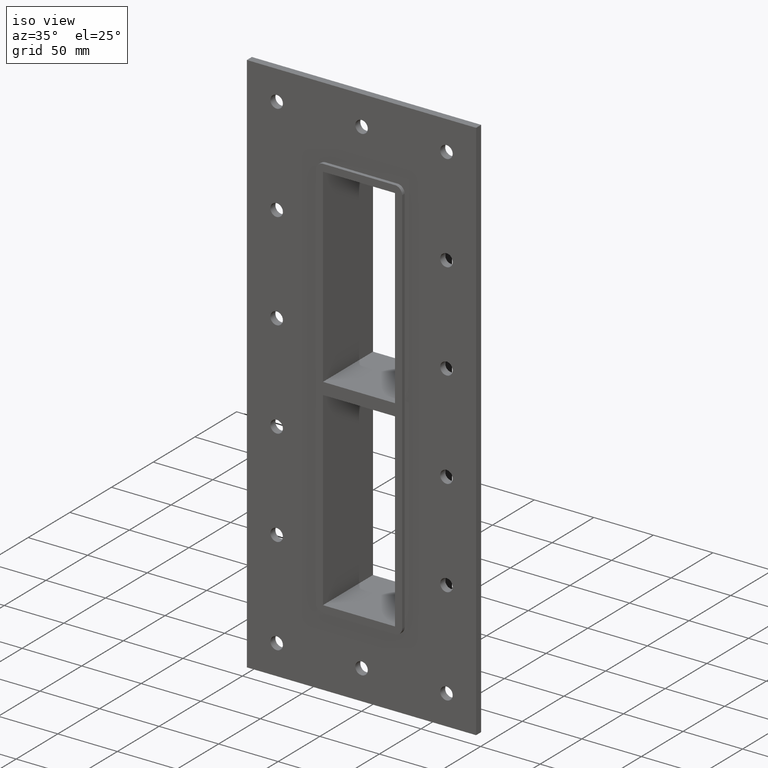
[diagram: clean part render]
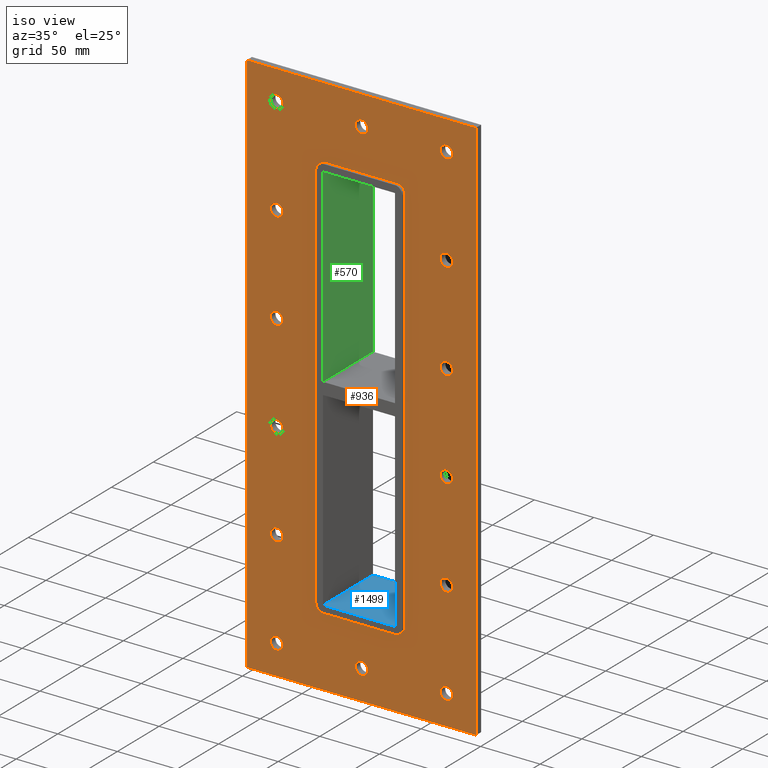
[diagram: same view with three faces highlighted in distinct colors, each labeled with its STEP entity id]
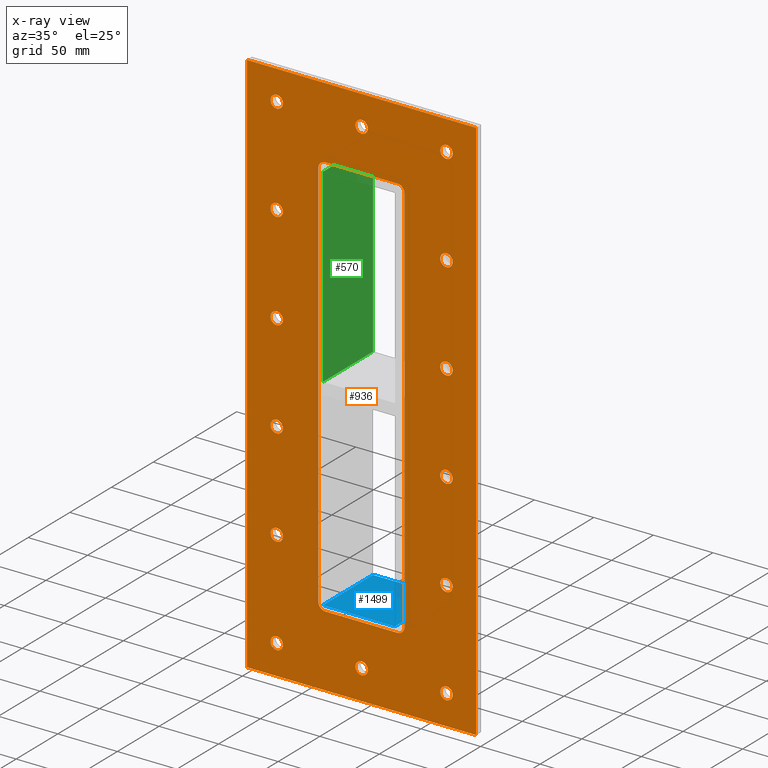
[diagram: x-ray of the same camera — body ghosted, the three highlighted faces saturated]
A machine part, iso view with three faces highlighted in distinct colors.
The next image is the same camera in x-ray (body ghosted, the three faces saturated) — at least one of them is partly hidden behind the body in this view.
Their STEP definitions:

[orange] entity #936 — the highlighted planar face has unit normal (0, 1, 0).
#84=CARTESIAN_POINT('',(-66.000000000000057,0.0,-205.50000000000006));
#85=VERTEX_POINT('',#84);
#86=CARTESIAN_POINT('',(-71.250000000000057,0.0,-205.50000000000006));
#87=DIRECTION('',(0.0,1.0,0.0));
#88=DIRECTION('',(1.0,0.0,0.0));
#89=AXIS2_PLACEMENT_3D('',#86,#87,#88);
#90=CIRCLE('',#89,5.25);
#91=EDGE_CURVE('',#85,#85,#90,.T.);
#112=CARTESIAN_POINT('',(76.599999999999952,0.0,-123.30000000000004));
#113=VERTEX_POINT('',#112);
#114=CARTESIAN_POINT('',(71.349999999999937,0.0,-123.30000000000004));
#115=DIRECTION('',(0.0,1.0,0.0));
#116=DIRECTION('',(1.0,0.0,0.0));
#117=AXIS2_PLACEMENT_3D('',#114,#115,#116);
#118=CIRCLE('',#117,5.25);
#119=EDGE_CURVE('',#113,#113,#118,.T.);
#140=CARTESIAN_POINT('',(-66.000000000000057,0.0,-123.30000000000004));
#141=VERTEX_POINT('',#140);
#142=CARTESIAN_POINT('',(-71.250000000000057,0.0,-123.30000000000004));
#143=DIRECTION('',(0.0,1.0,0.0));
#144=DIRECTION('',(1.0,0.0,0.0));
#145=AXIS2_PLACEMENT_3D('',#142,#143,#144);
#146=CIRCLE('',#145,5.25);
#147=EDGE_CURVE('',#141,#141,#146,.T.);
#168=CARTESIAN_POINT('',(76.599999999999952,0.0,-41.100000000000051));
#169=VERTEX_POINT('',#168);
#170=CARTESIAN_POINT('',(71.349999999999937,0.0,-41.100000000000051));
#171=DIRECTION('',(0.0,1.0,0.0));
#172=DIRECTION('',(1.0,0.0,0.0));
#173=AXIS2_PLACEMENT_3D('',#170,#171,#172);
#174=CIRCLE('',#173,5.25);
#175=EDGE_CURVE('',#169,#169,#174,.T.);
#196=CARTESIAN_POINT('',(-66.000000000000057,0.0,-41.100000000000051));
#197=VERTEX_POINT('',#196);
#198=CARTESIAN_POINT('',(-71.250000000000057,0.0,-41.100000000000051));
#199=DIRECTION('',(0.0,1.0,0.0));
#200=DIRECTION('',(1.0,0.0,0.0));
#201=AXIS2_PLACEMENT_3D('',#198,#199,#200);
#202=CIRCLE('',#201,5.25);
#203=EDGE_CURVE('',#197,#197,#202,.T.);
#224=CARTESIAN_POINT('',(76.599999999999952,0.0,41.099999999999994));
#225=VERTEX_POINT('',#224);
#226=CARTESIAN_POINT('',(71.349999999999937,0.0,41.099999999999994));
#227=DIRECTION('',(0.0,1.0,0.0));
#228=DIRECTION('',(1.0,0.0,0.0));
#229=AXIS2_PLACEMENT_3D('',#226,#227,#228);
#230=CIRCLE('',#229,5.25);
#231=EDGE_CURVE('',#225,#225,#230,.T.);
#252=CARTESIAN_POINT('',(-66.000000000000057,0.0,41.099999999999994));
#253=VERTEX_POINT('',#252);
#254=CARTESIAN_POINT('',(-71.250000000000057,0.0,41.099999999999994));
#255=DIRECTION('',(0.0,1.0,0.0));
#256=DIRECTION('',(1.0,0.0,0.0));
#257=AXIS2_PLACEMENT_3D('',#254,#255,#256);
#258=CIRCLE('',#257,5.25);
#259=EDGE_CURVE('',#253,#253,#258,.T.);
#280=CARTESIAN_POINT('',(76.599999999999952,0.0,123.3));
#281=VERTEX_POINT('',#280);
#282=CARTESIAN_POINT('',(71.349999999999937,0.0,123.3));
#283=DIRECTION('',(0.0,1.0,0.0));
#284=DIRECTION('',(1.0,0.0,0.0));
#285=AXIS2_PLACEMENT_3D('',#282,#283,#284);
#286=CIRCLE('',#285,5.25);
#287=EDGE_CURVE('',#281,#281,#286,.T.);
#308=CARTESIAN_POINT('',(-66.000000000000057,0.0,123.3));
#309=VERTEX_POINT('',#308);
#310=CARTESIAN_POINT('',(-71.250000000000057,0.0,123.3));
#311=DIRECTION('',(0.0,1.0,0.0));
#312=DIRECTION('',(1.0,0.0,0.0));
#313=AXIS2_PLACEMENT_3D('',#310,#311,#312);
#314=CIRCLE('',#313,5.25);
#315=EDGE_CURVE('',#309,#309,#314,.T.);
#336=CARTESIAN_POINT('',(5.299999999999949,0.0,205.5));
#337=VERTEX_POINT('',#336);
#338=CARTESIAN_POINT('',(0.049999999999946,0.0,205.5));
#339=DIRECTION('',(0.0,1.0,0.0));
#340=DIRECTION('',(1.0,0.0,0.0));
#341=AXIS2_PLACEMENT_3D('',#338,#339,#340);
#342=CIRCLE('',#341,5.25);
#343=EDGE_CURVE('',#337,#337,#342,.T.);
#364=CARTESIAN_POINT('',(5.299999999999949,0.0,-205.5));
#365=VERTEX_POINT('',#364);
#366=CARTESIAN_POINT('',(0.049999999999946,0.0,-205.5));
#367=DIRECTION('',(0.0,1.0,0.0));
#368=DIRECTION('',(1.0,0.0,0.0));
#369=AXIS2_PLACEMENT_3D('',#366,#367,#368);
#370=CIRCLE('',#369,5.25);
#371=EDGE_CURVE('',#365,#365,#370,.T.);
#392=CARTESIAN_POINT('',(76.599999999999952,0.0,-205.5));
#393=VERTEX_POINT('',#392);
#394=CARTESIAN_POINT('',(71.349999999999937,0.0,-205.5));
#395=DIRECTION('',(0.0,1.0,0.0));
#396=DIRECTION('',(1.0,0.0,0.0));
#397=AXIS2_PLACEMENT_3D('',#394,#395,#396);
#398=CIRCLE('',#397,5.25);
#399=EDGE_CURVE('',#393,#393,#398,.T.);
#420=CARTESIAN_POINT('',(-66.000000000000057,0.0,205.5));
#421=VERTEX_POINT('',#420);
#422=CARTESIAN_POINT('',(-71.250000000000057,0.0,205.5));
#423=DIRECTION('',(0.0,1.0,0.0));
#424=DIRECTION('',(1.0,0.0,0.0));
#425=AXIS2_PLACEMENT_3D('',#422,#423,#424);
#426=CIRCLE('',#425,5.25);
#427=EDGE_CURVE('',#421,#421,#426,.T.);
#448=CARTESIAN_POINT('',(76.599999999999952,0.0,205.5));
#449=VERTEX_POINT('',#448);
#450=CARTESIAN_POINT('',(71.349999999999937,0.0,205.5));
#451=DIRECTION('',(0.0,1.0,0.0));
#452=DIRECTION('',(1.0,0.0,0.0));
#453=AXIS2_PLACEMENT_3D('',#450,#451,#452);
#454=CIRCLE('',#453,5.25);
#455=EDGE_CURVE('',#449,#449,#454,.T.);
#785=CARTESIAN_POINT('',(0.0,0.0,1.905472E-014));
#786=DIRECTION('',(0.0,1.0,0.0));
#787=DIRECTION('',(0.0,0.0,1.0));
#788=AXIS2_PLACEMENT_3D('',#785,#786,#787);
#789=PLANE('',#788);
#790=CARTESIAN_POINT('',(-96.25,0.0,230.50000000000006));
#791=VERTEX_POINT('',#790);
#792=CARTESIAN_POINT('',(96.25,0.0,230.50000000000006));
#793=VERTEX_POINT('',#792);
#794=CARTESIAN_POINT('',(-96.25,0.0,230.50000000000006));
#795=DIRECTION('',(1.0,0.0,0.0));
#796=VECTOR('',#795,192.5);
#797=LINE('',#794,#796);
#798=EDGE_CURVE('',#791,#793,#797,.T.);
#799=ORIENTED_EDGE('',*,*,#798,.F.);
#800=CARTESIAN_POINT('',(-96.25,0.0,-230.5));
#801=VERTEX_POINT('',#800);
#802=CARTESIAN_POINT('',(-96.25,0.0,-230.5));
#803=DIRECTION('',(0.0,0.0,1.0));
#804=VECTOR('',#803,461.00000000000011);
#805=LINE('',#802,#804);
#806=EDGE_CURVE('',#801,#791,#805,.T.);
#807=ORIENTED_EDGE('',*,*,#806,.F.);
#808=CARTESIAN_POINT('',(96.25,0.0,-230.5));
#809=VERTEX_POINT('',#808);
#810=CARTESIAN_POINT('',(96.25,0.0,-230.5));
#811=DIRECTION('',(-1.0,0.0,0.0));
#812=VECTOR('',#811,192.5);
#813=LINE('',#810,#812);
#814=EDGE_CURVE('',#809,#801,#813,.T.);
#815=ORIENTED_EDGE('',*,*,#814,.F.);
#816=CARTESIAN_POINT('',(96.25,0.0,230.50000000000006));
#817=DIRECTION('',(0.0,0.0,-1.0));
#818=VECTOR('',#817,461.00000000000011);
#819=LINE('',#816,#818);
#820=EDGE_CURVE('',#793,#809,#819,.T.);
#821=ORIENTED_EDGE('',*,*,#820,.F.);
#822=EDGE_LOOP('',(#799,#807,#815,#821));
#823=FACE_OUTER_BOUND('',#822,.T.);
#824=ORIENTED_EDGE('',*,*,#91,.T.);
#825=EDGE_LOOP('',(#824));
#826=FACE_BOUND('',#825,.T.);
#827=ORIENTED_EDGE('',*,*,#119,.T.);
#828=EDGE_LOOP('',(#827));
#829=FACE_BOUND('',#828,.T.);
#830=ORIENTED_EDGE('',*,*,#147,.T.);
#831=EDGE_LOOP('',(#830));
#832=FACE_BOUND('',#831,.T.);
#833=ORIENTED_EDGE('',*,*,#175,.T.);
#834=EDGE_LOOP('',(#833));
#835=FACE_BOUND('',#834,.T.);
#836=ORIENTED_EDGE('',*,*,#203,.T.);
#837=EDGE_LOOP('',(#836));
#838=FACE_BOUND('',#837,.T.);
#839=ORIENTED_EDGE('',*,*,#231,.T.);
#840=EDGE_LOOP('',(#839));
#841=FACE_BOUND('',#840,.T.);
#842=ORIENTED_EDGE('',*,*,#259,.T.);
#843=EDGE_LOOP('',(#842));
#844=FACE_BOUND('',#843,.T.);
#845=ORIENTED_EDGE('',*,*,#287,.T.);
#846=EDGE_LOOP('',(#845));
#847=FACE_BOUND('',#846,.T.);
#848=ORIENTED_EDGE('',*,*,#315,.T.);
#849=EDGE_LOOP('',(#848));
#850=FACE_BOUND('',#849,.T.);
#851=ORIENTED_EDGE('',*,*,#343,.T.);
#852=EDGE_LOOP('',(#851));
#853=FACE_BOUND('',#852,.T.);
#854=ORIENTED_EDGE('',*,*,#371,.T.);
#855=EDGE_LOOP('',(#854));
#856=FACE_BOUND('',#855,.T.);
#857=ORIENTED_EDGE('',*,*,#399,.T.);
#858=EDGE_LOOP('',(#857));
#859=FACE_BOUND('',#858,.T.);
#860=ORIENTED_EDGE('',*,*,#427,.T.);
#861=EDGE_LOOP('',(#860));
#862=FACE_BOUND('',#861,.T.);
#863=ORIENTED_EDGE('',*,*,#455,.T.);
#864=EDGE_LOOP('',(#863));
#865=FACE_BOUND('',#864,.T.);
#866=CARTESIAN_POINT('',(-36.250000000000007,0.0,-164.49999999999994));
#867=VERTEX_POINT('',#866);
#868=CARTESIAN_POINT('',(-30.250000000000004,0.0,-170.49999999999997));
#869=VERTEX_POINT('',#868);
#870=CARTESIAN_POINT('',(-30.250000000000004,0.0,-164.49999999999994));
#871=DIRECTION('',(0.0,-1.0,0.0));
#872=DIRECTION('',(-0.707106781186546,0.0,-0.707106781186549));
#873=AXIS2_PLACEMENT_3D('',#870,#871,#872);
#874=CIRCLE('',#873,6.000000000000001);
#875=EDGE_CURVE('',#867,#869,#874,.T.);
#876=ORIENTED_EDGE('',*,*,#875,.F.);
#877=CARTESIAN_POINT('',(-36.250000000000007,0.0,164.50000000000003));
#878=VERTEX_POINT('',#877);
#879=CARTESIAN_POINT('',(-36.250000000000007,0.0,164.50000000000003));
#880=DIRECTION('',(0.0,0.0,-1.0));
#881=VECTOR('',#880,329.0);
#882=LINE('',#879,#881);
#883=EDGE_CURVE('',#878,#867,#882,.T.);
#884=ORIENTED_EDGE('',*,*,#883,.F.);
#885=CARTESIAN_POINT('',(-30.250000000000004,0.0,170.50000000000006));
#886=VERTEX_POINT('',#885);
#887=CARTESIAN_POINT('',(-30.250000000000004,0.0,164.50000000000003));
#888=DIRECTION('',(0.0,-1.0,0.0));
#889=DIRECTION('',(-0.707106781186546,0.0,0.707106781186549));
#890=AXIS2_PLACEMENT_3D('',#887,#888,#889);
#891=CIRCLE('',#890,6.000000000000001);
#892=EDGE_CURVE('',#886,#878,#891,.T.);
#893=ORIENTED_EDGE('',*,*,#892,.F.);
#894=CARTESIAN_POINT('',(30.250000000000004,0.0,170.50000000000006));
#895=VERTEX_POINT('',#894);
#896=CARTESIAN_POINT('',(30.249999999999996,0.0,170.50000000000006));
#897=DIRECTION('',(-1.0,0.0,0.0));
#898=VECTOR('',#897,60.5);
#899=LINE('',#896,#898);
#900=EDGE_CURVE('',#895,#886,#899,.T.);
#901=ORIENTED_EDGE('',*,*,#900,.F.);
#902=CARTESIAN_POINT('',(36.250000000000007,0.0,164.50000000000003));
#903=VERTEX_POINT('',#902);
#904=CARTESIAN_POINT('',(30.250000000000004,0.0,164.50000000000003));
#905=DIRECTION('',(0.0,-1.0,0.0));
#906=DIRECTION('',(0.707106781186546,0.0,0.707106781186549));
#907=AXIS2_PLACEMENT_3D('',#904,#905,#906);
#908=CIRCLE('',#907,6.000000000000001);
#909=EDGE_CURVE('',#903,#895,#908,.T.);
#910=ORIENTED_EDGE('',*,*,#909,.F.);
#911=CARTESIAN_POINT('',(36.250000000000007,0.0,-164.49999999999994));
#912=VERTEX_POINT('',#911);
#913=CARTESIAN_POINT('',(36.250000000000007,0.0,-164.49999999999994));
#914=DIRECTION('',(0.0,0.0,1.0));
#915=VECTOR('',#914,329.0);
#916=LINE('',#913,#915);
#917=EDGE_CURVE('',#912,#903,#916,.T.);
#918=ORIENTED_EDGE('',*,*,#917,.F.);
#919=CARTESIAN_POINT('',(30.250000000000004,0.0,-170.49999999999997));
#920=VERTEX_POINT('',#919);
#921=CARTESIAN_POINT('',(30.250000000000004,0.0,-164.49999999999994));
#922=DIRECTION('',(0.0,-1.0,0.0));
#923=DIRECTION('',(0.707106781186546,0.0,-0.707106781186549));
#924=AXIS2_PLACEMENT_3D('',#921,#922,#923);
#925=CIRCLE('',#924,6.000000000000001);
#926=EDGE_CURVE('',#920,#912,#925,.T.);
#927=ORIENTED_EDGE('',*,*,#926,.F.);
#928=CARTESIAN_POINT('',(-30.249999999999996,0.0,-170.49999999999997));
#929=DIRECTION('',(1.0,0.0,0.0));
#930=VECTOR('',#929,60.5);
#931=LINE('',#928,#930);
#932=EDGE_CURVE('',#869,#920,#931,.T.);
#933=ORIENTED_EDGE('',*,*,#932,.F.);
#934=EDGE_LOOP('',(#876,#884,#893,#901,#910,#918,#927,#933));
#935=FACE_BOUND('',#934,.T.);
#936=ADVANCED_FACE('',(#823,#826,#829,#832,#835,#838,#841,#844,#847,#850,#853,#856,#859,#862,#865,#935),#789,.F.);

[blue] entity #1499 — the highlighted planar face has unit normal (0, 0, -1).
#577=CARTESIAN_POINT('',(30.25,57.0,-164.50000000000003));
#578=VERTEX_POINT('',#577);
#585=CARTESIAN_POINT('',(30.25,-3.0,-164.50000000000003));
#586=VERTEX_POINT('',#585);
#587=CARTESIAN_POINT('',(30.25,56.999999999999993,-164.50000000000003));
#588=DIRECTION('',(0.0,-1.0,0.0));
#589=VECTOR('',#588,59.999999999999993);
#590=LINE('',#587,#589);
#591=EDGE_CURVE('',#578,#586,#590,.T.);
#1011=CARTESIAN_POINT('',(-30.25,-3.0,-164.50000000000003));
#1012=VERTEX_POINT('',#1011);
#1019=CARTESIAN_POINT('',(-30.25,57.0,-164.50000000000003));
#1020=VERTEX_POINT('',#1019);
#1021=CARTESIAN_POINT('',(-30.25,-3.0,-164.50000000000003));
#1022=DIRECTION('',(0.0,1.0,0.0));
#1023=VECTOR('',#1022,60.0);
#1024=LINE('',#1021,#1023);
#1025=EDGE_CURVE('',#1012,#1020,#1024,.T.);
#1365=CARTESIAN_POINT('',(30.25,-3.0,-164.50000000000003));
#1366=DIRECTION('',(-1.0,0.0,0.0));
#1367=VECTOR('',#1366,60.5);
#1368=LINE('',#1365,#1367);
#1369=EDGE_CURVE('',#586,#1012,#1368,.T.);
#1483=CARTESIAN_POINT('',(30.25,0.0,-164.50000000000003));
#1484=DIRECTION('',(0.0,0.0,-1.0));
#1485=DIRECTION('',(-1.0,0.0,0.0));
#1486=AXIS2_PLACEMENT_3D('',#1483,#1484,#1485);
#1487=PLANE('',#1486);
#1488=ORIENTED_EDGE('',*,*,#1025,.F.);
#1489=ORIENTED_EDGE('',*,*,#1369,.F.);
#1490=ORIENTED_EDGE('',*,*,#591,.F.);
#1491=CARTESIAN_POINT('',(-30.25,57.0,-164.50000000000003));
#1492=DIRECTION('',(1.0,0.0,0.0));
#1493=VECTOR('',#1492,60.5);
#1494=LINE('',#1491,#1493);
#1495=EDGE_CURVE('',#1020,#578,#1494,.T.);
#1496=ORIENTED_EDGE('',*,*,#1495,.F.);
#1497=EDGE_LOOP('',(#1488,#1489,#1490,#1496));
#1498=FACE_OUTER_BOUND('',#1497,.T.);
#1499=ADVANCED_FACE('',(#1498),#1487,.F.);

[green] entity #570 — the highlighted planar face has unit normal (-1, 0, 0).
#505=CARTESIAN_POINT('',(-30.249999999999709,-3.0,5.0));
#506=VERTEX_POINT('',#505);
#523=CARTESIAN_POINT('',(-30.249999999999709,57.0,5.0));
#524=VERTEX_POINT('',#523);
#531=CARTESIAN_POINT('',(-30.25,-3.0,5.0));
#532=DIRECTION('',(0.0,1.0,0.0));
#533=VECTOR('',#532,60.000000000000007);
#534=LINE('',#531,#533);
#535=EDGE_CURVE('',#506,#524,#534,.T.);
#540=CARTESIAN_POINT('',(-30.25,0.0,-164.50000000000003));
#541=DIRECTION('',(-1.0,0.0,0.0));
#542=DIRECTION('',(0.0,0.0,1.0));
#543=AXIS2_PLACEMENT_3D('',#540,#541,#542);
#544=PLANE('',#543);
#545=ORIENTED_EDGE('',*,*,#535,.T.);
#546=CARTESIAN_POINT('',(-30.25,57.0,164.50000000000003));
#547=VERTEX_POINT('',#546);
#548=CARTESIAN_POINT('',(-30.25,57.0,164.50000000000006));
#549=DIRECTION('',(0.0,0.0,-1.0));
#550=VECTOR('',#549,159.50000000000006);
#551=LINE('',#548,#550);
#552=EDGE_CURVE('',#547,#524,#551,.T.);
#553=ORIENTED_EDGE('',*,*,#552,.F.);
#554=CARTESIAN_POINT('',(-30.25,-3.0,164.50000000000003));
#555=VERTEX_POINT('',#554);
#556=CARTESIAN_POINT('',(-30.25,-3.0,164.50000000000003));
#557=DIRECTION('',(0.0,1.0,0.0));
#558=VECTOR('',#557,60.0);
#559=LINE('',#556,#558);
#560=EDGE_CURVE('',#555,#547,#559,.T.);
#561=ORIENTED_EDGE('',*,*,#560,.F.);
#562=CARTESIAN_POINT('',(-30.25,-3.0,5.0));
#563=DIRECTION('',(0.0,0.0,1.0));
#564=VECTOR('',#563,159.50000000000006);
#565=LINE('',#562,#564);
#566=EDGE_CURVE('',#506,#555,#565,.T.);
#567=ORIENTED_EDGE('',*,*,#566,.F.);
#568=EDGE_LOOP('',(#545,#553,#561,#567));
#569=FACE_OUTER_BOUND('',#568,.T.);
#570=ADVANCED_FACE('',(#569),#544,.F.);